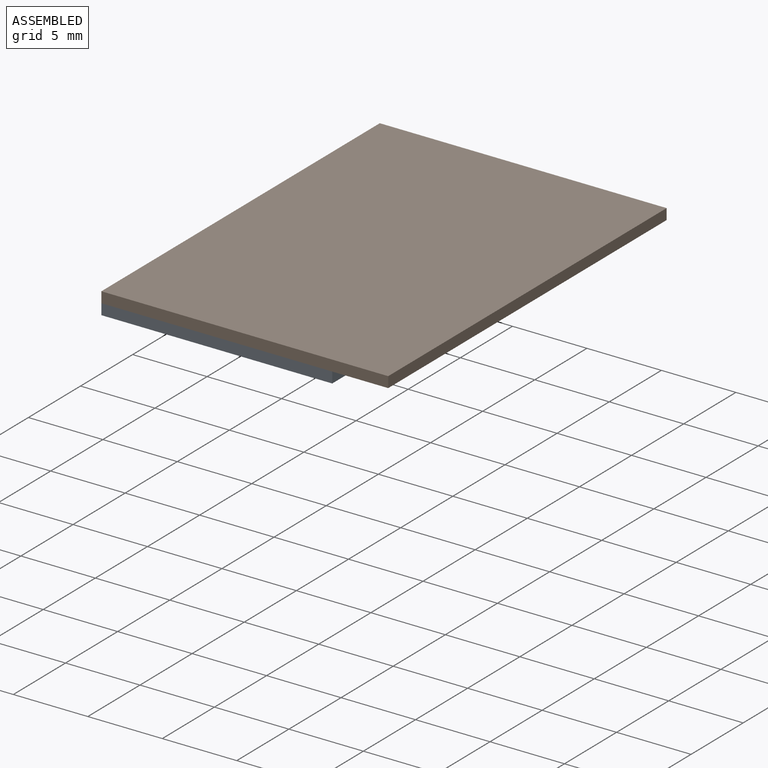
[diagram: assembled view]
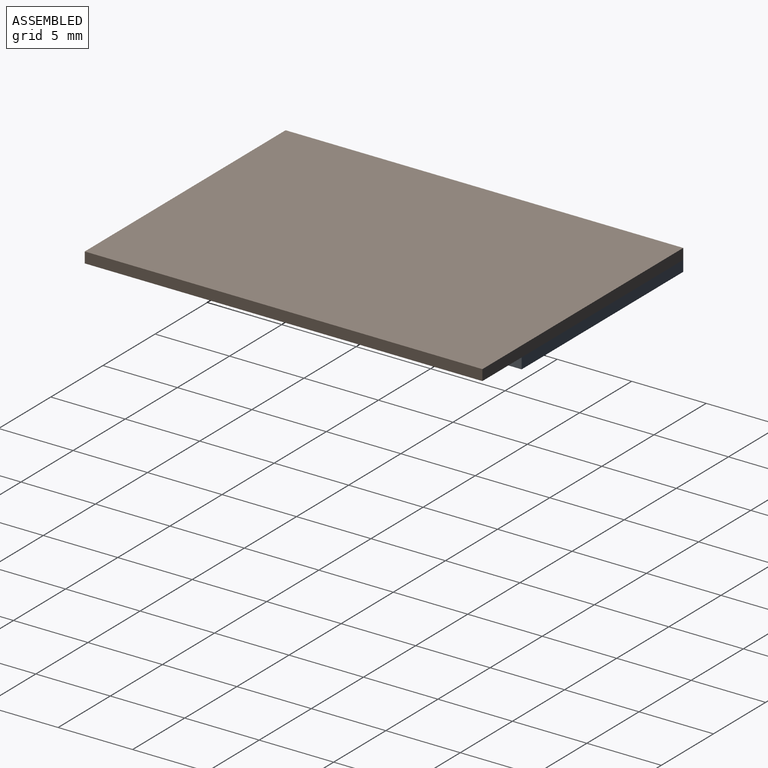
[diagram: assembled view, second angle]
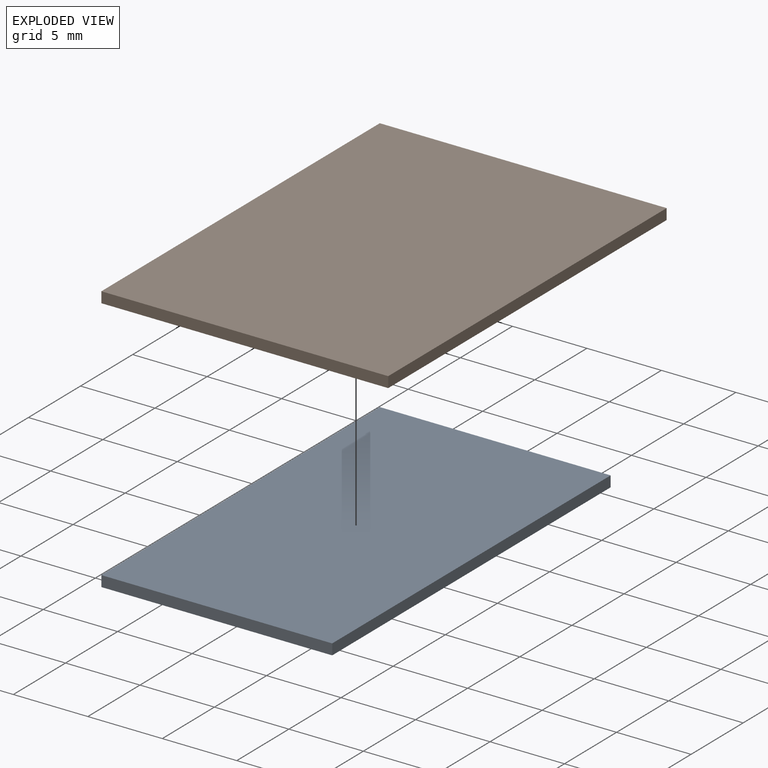
[diagram: exploded view]
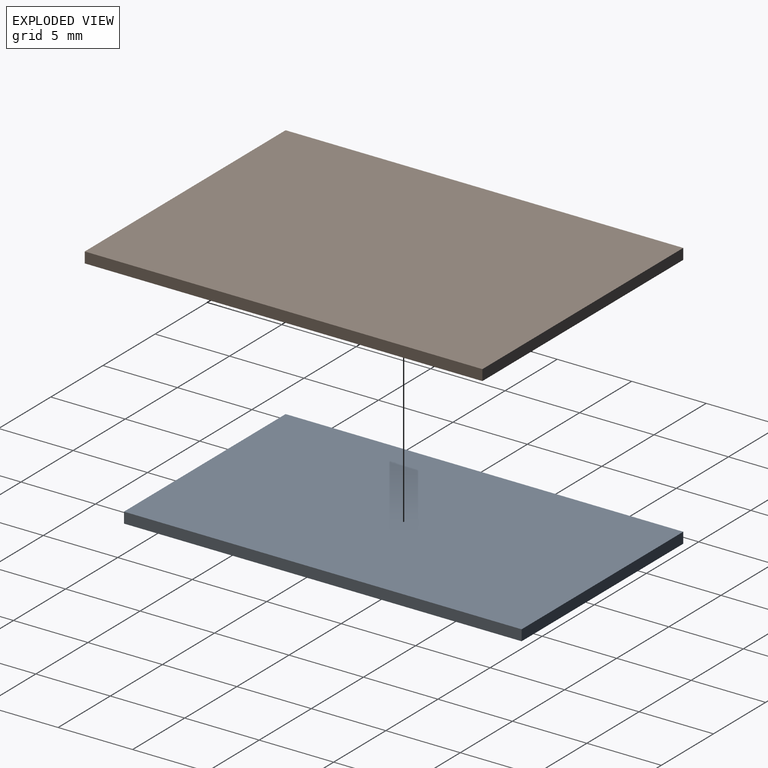
[diagram: exploded view, second angle]
ASSEMBLY  parts=2 mates=2
PART A: 6 faces, bbox 15.5x26.7x0.7 mm
  f0: plane 26.7x0.73mm, normal (-1,0,0), area 19.4mm2, adj f1,f3,f4,f5
  f1: plane 15.5x0.73mm, normal (0,-1,0), area 11.2mm2, adj f0,f2,f4,f5
  f2: plane 26.7x0.73mm, normal (1,0,0), area 19.4mm2, adj f1,f3,f4,f5
  f3: plane 15.5x0.73mm, normal (0,1,0), area 11.2mm2, adj f0,f2,f4,f5
  f4: plane 26.7x15.5mm, normal (0,0,1), area 413.8mm2, adj f0,f1,f2,f3
  f5: plane 26.7x15.5mm, normal (0,0,-1), area 413.8mm2, adj f0,f1,f2,f3
PART B: 6 faces, bbox 19.3x26.7x0.7 mm
  f0: plane 26.7x0.73mm, normal (-1,0,0), area 19.4mm2, adj f1,f3,f4,f5
  f1: plane 19.26x0.73mm, normal (0,-1,0), area 14mm2, adj f0,f2,f4,f5
  f2: plane 26.7x0.73mm, normal (1,0,0), area 19.4mm2, adj f1,f3,f4,f5
  f3: plane 19.26x0.73mm, normal (0,1,0), area 14mm2, adj f0,f2,f4,f5
  f4: plane 26.7x19.26mm, normal (0,0,1), area 514.2mm2, adj f0,f1,f2,f3
  f5: plane 26.7x19.26mm, normal (0,0,-1), area 514.2mm2, adj f0,f1,f2,f3
PLACE A t=(26.97,38.7,-0.12)mm
PLACE B t=(-3.44,-1.64,0.6)mm
MATE planar A.f4 <-> B.f5  axis (0,0,1) through (4.31,11.71,0.6)mm
MATE fastened A.f4 <-> B.f5  axis (0,0,-1) through (-3.44,25.06,0.6)mm
